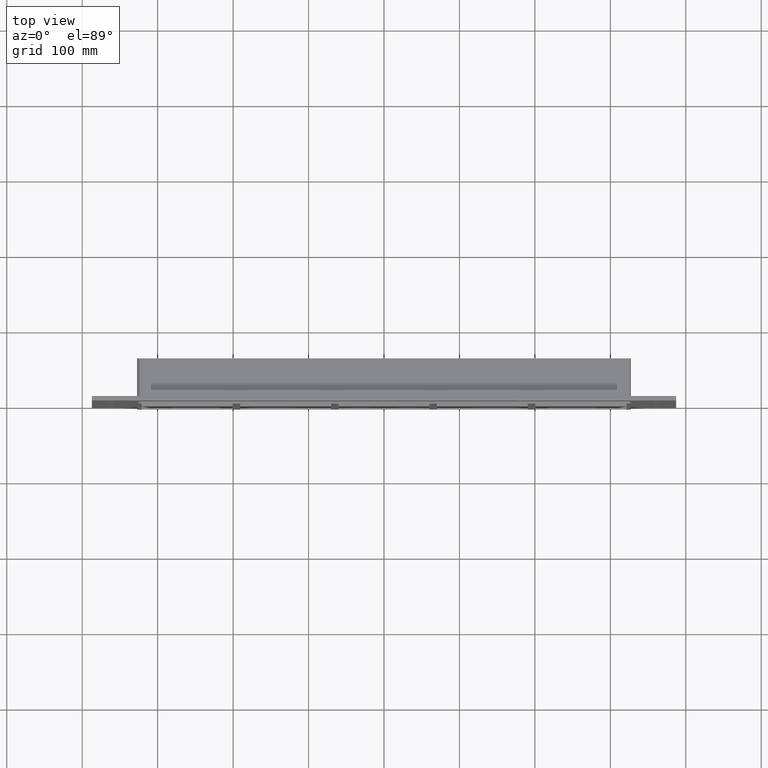
[diagram: clean part render]
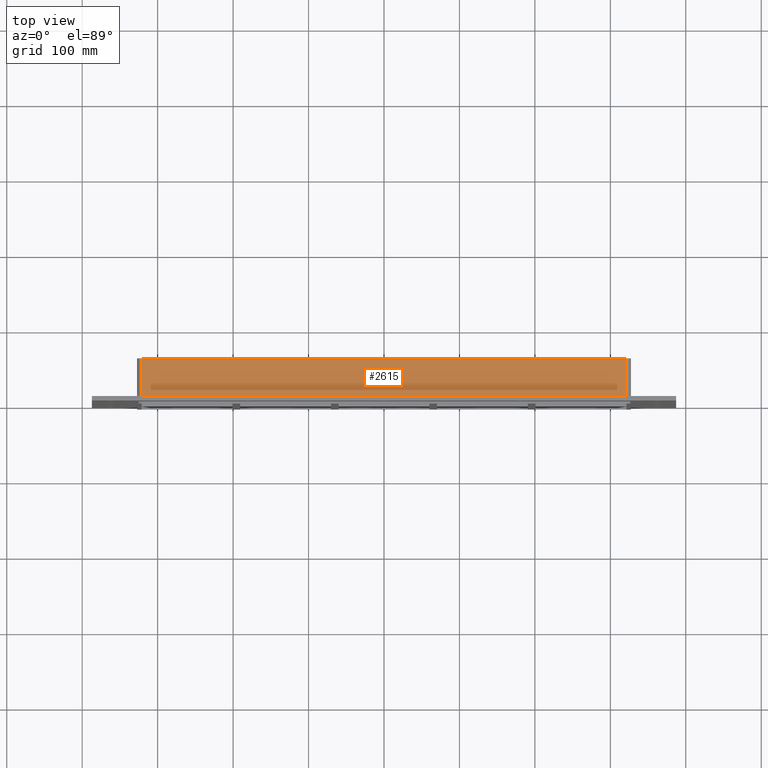
[diagram: same view with one face highlighted and labeled with its STEP entity id]
A machine part, top view. The second image highlights one B-rep face of the part: STEP entity #2615.
In plain terms, the highlighted planar face has unit normal (0, 0, 1).
Its self-contained STEP definition (entity closure, byte-faithful):
#1436=CARTESIAN_POINT('',(-321.25,57.0,230.00000000000006));
#1437=VERTEX_POINT('',#1436);
#1445=CARTESIAN_POINT('',(321.24999999999994,57.0,230.00000000000006));
#1446=VERTEX_POINT('',#1445);
#1447=CARTESIAN_POINT('',(-321.25,57.0,230.00000000000006));
#1448=DIRECTION('',(1.0,0.0,0.0));
#1449=VECTOR('',#1448,642.5);
#1450=LINE('',#1447,#1449);
#1451=EDGE_CURVE('',#1437,#1446,#1450,.T.);
#2077=CARTESIAN_POINT('',(321.25,6.000000000000001,230.00000000000006));
#2078=VERTEX_POINT('',#2077);
#2086=CARTESIAN_POINT('',(-321.25,6.000000000000001,230.00000000000006));
#2087=VERTEX_POINT('',#2086);
#2088=CARTESIAN_POINT('',(-321.25,6.000000000000001,230.00000000000006));
#2089=DIRECTION('',(1.0,0.0,0.0));
#2090=VECTOR('',#2089,642.5);
#2091=LINE('',#2088,#2090);
#2092=EDGE_CURVE('',#2087,#2078,#2091,.T.);
#2379=CARTESIAN_POINT('',(321.25,57.0,230.00000000000006));
#2380=DIRECTION('',(0.0,-1.0,0.0));
#2381=VECTOR('',#2380,51.0);
#2382=LINE('',#2379,#2381);
#2383=EDGE_CURVE('',#1446,#2078,#2382,.T.);
#2593=CARTESIAN_POINT('',(-321.25,6.000000000000001,230.00000000000006));
#2594=DIRECTION('',(0.0,1.0,0.0));
#2595=VECTOR('',#2594,51.0);
#2596=LINE('',#2593,#2595);
#2597=EDGE_CURVE('',#2087,#1437,#2596,.T.);
#2604=CARTESIAN_POINT('',(-327.25,0.0,230.00000000000006));
#2605=DIRECTION('',(0.0,0.0,1.0));
#2606=DIRECTION('',(1.0,0.0,0.0));
#2607=AXIS2_PLACEMENT_3D('',#2604,#2605,#2606);
#2608=PLANE('',#2607);
#2609=ORIENTED_EDGE('',*,*,#2092,.T.);
#2610=ORIENTED_EDGE('',*,*,#2383,.F.);
#2611=ORIENTED_EDGE('',*,*,#1451,.F.);
#2612=ORIENTED_EDGE('',*,*,#2597,.F.);
#2613=EDGE_LOOP('',(#2609,#2610,#2611,#2612));
#2614=FACE_OUTER_BOUND('',#2613,.T.);
#2615=ADVANCED_FACE('',(#2614),#2608,.T.);